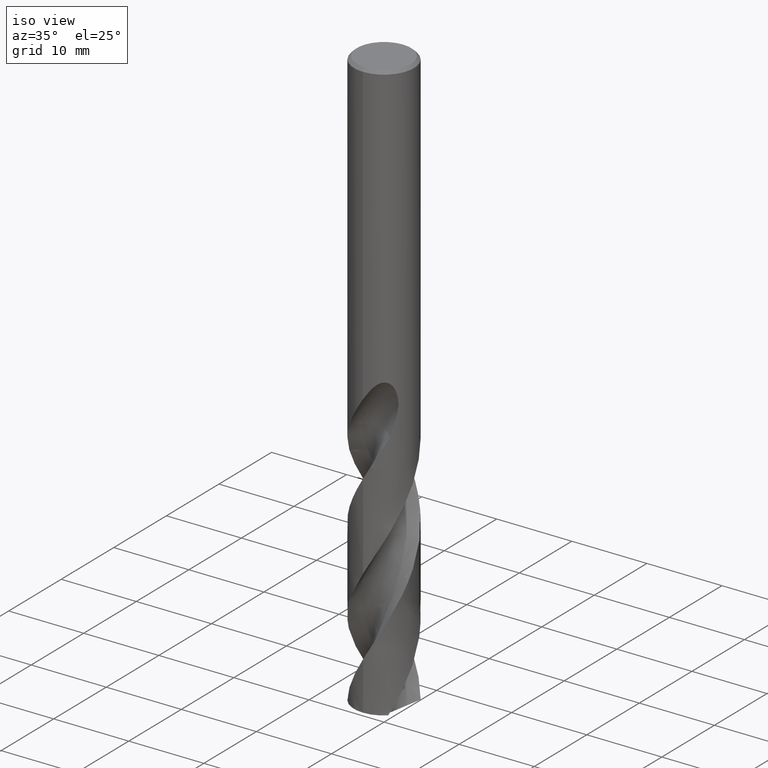
[diagram: clean part render]
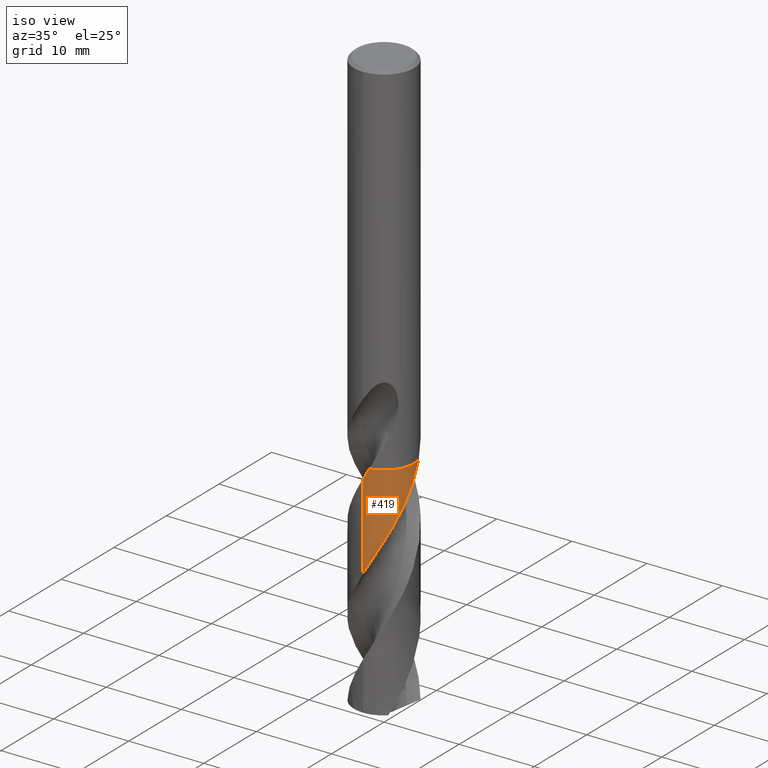
[diagram: same view with one face highlighted and labeled with its STEP entity id]
A machine part, iso view. The second image highlights one B-rep face of the part: STEP entity #419.
In plain terms, the highlighted conical surface has half-angle 0 deg.
Its self-contained STEP definition (entity closure, byte-faithful):
#295=EDGE_CURVE('',#597,#333,#789,.T.);
#333=VERTEX_POINT('',#830);
#361=EDGE_CURVE('',#333,#485,#858,.T.);
#387=VERTEX_POINT('',#888);
#419=ADVANCED_FACE('',(#921),#922,.T.);
#485=VERTEX_POINT('',#1000);
#597=VERTEX_POINT('',#1116);
#629=VERTEX_POINT('',#1150);
#639=EDGE_CURVE('',#387,#653,#1160,.T.);
#653=VERTEX_POINT('',#1177);
#657=EDGE_CURVE('',#387,#485,#1181,.T.);
#673=EDGE_CURVE('',#653,#629,#1199,.T.);
#731=EDGE_CURVE('',#629,#597,#1265,.T.);
#789=B_SPLINE_CURVE_WITH_KNOTS('',3,(#1567,#1568,#1569,#1570),.UNSPECIFIED.,.F.,.F.,(4,4),(0.0,0.0098880552336927),.UNSPECIFIED.);
#830=CARTESIAN_POINT('',(0.791054773656977,-3.92089689872888,-48.005));
#858=B_SPLINE_CURVE_WITH_KNOTS('',3,(#2239,#2240,#2241,#2242,#2243,#2244,#2245,#2246,#2247,#2248,#2249,#2250,#2251,#2252,#2253,#2254,#2255,#2256,#2257,#2258,#2259,#2260,#2261,#2262,#2263,#2264,#2265,#2266,#2267,#2268,#2269,#2270,#2271,#2272,#2273,#2274,#2275,#2276,#2277,#2278,#2279,#2280,#2281,#2282,#2283,#2284,#2285,#2286,#2287,#2288),.UNSPECIFIED.,.F.,.F.,(4,2,2,2,2,2,2,2,2,2,2,2,2,2,2,2,2,2,2,2,2,2,2,2,4),(0.0,1.02799668072742,2.07735387750067,3.63013426830625,5.1780060058088,5.94599776261361,7.48811495394432,9.03166706575465,10.5844226281698,10.6321024614875,12.0985094524009,13.6544079590011,15.1994408132323,15.9700367406661,17.5101261338691,19.0567035179434,20.608110618046,20.7990912139625,22.3324829381448,23.8079970023874,25.0952914843608,26.2243221028294,28.1968960402932,28.3820861675745,34.2062165621228),.UNSPECIFIED.);
#888=CARTESIAN_POINT('',(2.84448184570456E-014,-3.99994344808129,-60.8363528659135));
#921=FACE_OUTER_BOUND('',#3019,.T.);
#922=CONICAL_SURFACE('',#3020,3.99995,3.38476837934508E-006);
#1000=CARTESIAN_POINT('',(-1.28827969112206E-012,-3.99990468181257,-49.3832002838923));
#1116=CARTESIAN_POINT('',(0.793891596292515,-3.92032347432404,-48.0));
#1150=CARTESIAN_POINT('',(3.83959003598637,1.12104788727074,-48.0));
#1160=B_SPLINE_CURVE_WITH_KNOTS('',3,(#5688,#5689,#5690,#5691,#5692,#5693,#5694,#5695,#5696,#5697,#5698,#5699,#5700,#5701,#5702,#5703,#5704,#5705,#5706,#5707,#5708,#5709,#5710,#5711,#5712,#5713,#5714,#5715,#5716,#5717,#5718,#5719,#5720,#5721,#5722,#5723,#5724,#5725,#5726,#5727,#5728,#5729,#5730,#5731,#5732,#5733,#5734,#5735,#5736,#5737,#5738,#5739,#5740,#5741,#5742,#5743,#5744,#5745,#5746,#5747,#5748,#5749,#5750,#5751,#5752,#5753),.UNSPECIFIED.,.F.,.F.,(4,2,2,2,2,2,2,2,2,2,2,2,2,2,2,2,2,2,2,2,2,2,2,2,2,2,2,2,2,2,2,2,4),(0.0,0.944607778475356,3.20738165783474,3.64605016268316,5.04109177187664,6.93254200265713,8.19569085460567,8.77122407626578,9.97841143599279,10.6092595905983,11.2375063194132,12.8818820237863,14.1404375944332,15.6474018743326,16.4210269280412,17.6649261052635,18.27322196898,18.862197856048,20.0619138474756,20.6932373448301,21.3221075603283,23.4500408515092,23.7348240611657,24.9376039422612,26.0941447335014,26.1785505962015,27.558081359634,28.2368339104305,28.9759774203419,30.2742329755983,32.2196413438394,32.7068085286034,34.1649802506815),.UNSPECIFIED.);
#1177=CARTESIAN_POINT('',(3.84039807944585,1.11827669217084,-48.005));
#1181=LINE('',#5852,#5853);
#1199=B_SPLINE_CURVE_WITH_KNOTS('',3,(#6446,#6447,#6448,#6449),.UNSPECIFIED.,.F.,.F.,(4,4),(0.0,0.0119470325940762),.UNSPECIFIED.);
#1265=CIRCLE('',#7650,3.9999);
#1567=CARTESIAN_POINT('',(0.793891596292534,-3.92032347432403,-48.0));
#1568=CARTESIAN_POINT('',(0.792273242918883,-3.92065121150491,-48.0028525879593));
#1569=CARTESIAN_POINT('',(0.790654705592454,-3.92097794272793,-48.0057051862417));
#1570=CARTESIAN_POINT('',(0.789035985242139,-3.92130366787838,-48.0085577964626));
#2239=CARTESIAN_POINT('',(0.791838784257172,-3.92073863547652,-48.0036182177148));
#2240=CARTESIAN_POINT('',(0.623572954509755,-3.95472290159962,-48.3001841739063));
#2241=CARTESIAN_POINT('',(0.453473797606114,-3.97780335772909,-48.5970459985183));
#2242=CARTESIAN_POINT('',(0.108190376496586,-4.00226200502771,-49.1965065546721));
#2243=CARTESIAN_POINT('',(-0.0669438566466696,-4.00317526336891,-49.49861443986));
#2244=CARTESIAN_POINT('',(-0.50030479960108,-3.97694296299062,-50.2490689062949));
#2245=CARTESIAN_POINT('',(-0.756639476620323,-3.93621046461631,-50.6957967943652));
#2246=CARTESIAN_POINT('',(-1.25679439935651,-3.80609056041076,-51.5903377106872));
#2247=CARTESIAN_POINT('',(-1.49972547534538,-3.7170982342063,-52.0358548996867));
#2248=CARTESIAN_POINT('',(-1.84796869035884,-3.54975430337122,-52.703772375038));
#2249=CARTESIAN_POINT('',(-1.96068160379334,-3.48876177918256,-52.9250443357911));
#2250=CARTESIAN_POINT('',(-2.29026091701263,-3.28940301336364,-53.5914805853687));
#2251=CARTESIAN_POINT('',(-2.49699202907519,-3.13537564420076,-54.0356106508866));
#2252=CARTESIAN_POINT('',(-2.87825773849605,-2.7895034223265,-54.9256725983561));
#2253=CARTESIAN_POINT('',(-3.05177046120883,-2.59852350011646,-55.369876870617));
#2254=CARTESIAN_POINT('',(-3.36051953826379,-2.18480023641827,-56.2632035041614));
#2255=CARTESIAN_POINT('',(-3.49489687870964,-1.96271308775711,-56.7099054988991));
#2256=CARTESIAN_POINT('',(-3.61032397437657,-1.72193856786252,-57.1715313406014));
#2257=CARTESIAN_POINT('',(-3.61374109708892,-1.71475574648098,-57.1852839113042));
#2258=CARTESIAN_POINT('',(-3.72156524213154,-1.48635498170918,-57.6220044689431));
#2259=CARTESIAN_POINT('',(-3.80547095969,-1.25605749944277,-58.0446831669718));
#2260=CARTESIAN_POINT('',(-3.93396057456556,-0.768629516382036,-58.9165873307411));
#2261=CARTESIAN_POINT('',(-3.975520561322,-0.511902746727313,-59.3638327900287));
#2262=CARTESIAN_POINT('',(-4.00822640244749,0.00409666810817405,-60.2585324706806));
#2263=CARTESIAN_POINT('',(-3.99965252303572,0.26226014437244,-60.7034112893081));
#2264=CARTESIAN_POINT('',(-3.94963082882328,0.645375907918353,-61.3713903033814));
#2265=CARTESIAN_POINT('',(-3.9268524519764,0.771954533298283,-61.5934223651593));
#2266=CARTESIAN_POINT('',(-3.84041809970519,1.14749468546471,-62.2601318746146));
#2267=CARTESIAN_POINT('',(-3.75881785037602,1.39173129389942,-62.7038361828208));
#2268=CARTESIAN_POINT('',(-3.5494047052924,1.86223937229388,-63.594365060592));
#2269=CARTESIAN_POINT('',(-3.42193867176568,2.08721888848722,-64.0393989651504));
#2270=CARTESIAN_POINT('',(-3.12510909337307,2.51003593374624,-64.933372411578));
#2271=CARTESIAN_POINT('',(-2.95621914574408,2.70692877582486,-65.3798228775582));
#2272=CARTESIAN_POINT('',(-2.74642169522876,2.90824135609275,-65.8824827735131));
#2273=CARTESIAN_POINT('',(-2.72316706876322,2.93002767645707,-65.937567945988));
#2274=CARTESIAN_POINT('',(-2.51087207447297,3.12420803253776,-66.4351149288434));
#2275=CARTESIAN_POINT('',(-2.30594161670195,3.27838424851526,-66.8771622863122));
#2276=CARTESIAN_POINT('',(-1.87770785831832,3.54041784492399,-67.7454389618058));
#2277=CARTESIAN_POINT('',(-1.6563424304655,3.64922423706427,-68.1698792639462));
#2278=CARTESIAN_POINT('',(-1.22584574239272,3.81355035678172,-68.9672700350543));
#2279=CARTESIAN_POINT('',(-1.01935864631966,3.87386616189126,-69.3383075573583));
#2280=CARTESIAN_POINT('',(-0.624438101721958,3.95542364169466,-70.035567711206));
#2281=CARTESIAN_POINT('',(-0.437506448952736,3.98043442194274,-70.36069639626));
#2282=CARTESIAN_POINT('',(0.0788280941115898,4.01271371994461,-71.2559125742705));
#2283=CARTESIAN_POINT('',(0.408617993278139,3.99265391261368,-71.8231966866826));
#2284=CARTESIAN_POINT('',(0.762697250022255,3.92671750452749,-72.4458548487027));
#2285=CARTESIAN_POINT('',(0.793014935318136,3.92070732171032,-72.4992861605571));
#2286=CARTESIAN_POINT('',(1.77443541089015,3.71430243070943,-74.233625532473));
#2287=CARTESIAN_POINT('',(2.62116420497109,3.17414673554688,-75.8635256924284));
#2288=CARTESIAN_POINT('',(3.20352415008977,2.39529393181539,-77.5441190629352));
#3019=EDGE_LOOP('',(#7804,#7805,#7806,#7807,#7808,#7809));
#3020=AXIS2_PLACEMENT_3D('',#7810,#7811,#7812);
#5688=CARTESIAN_POINT('',(-2.65823386777546,2.98894508216719,-77.5441190629352));
#5689=CARTESIAN_POINT('',(-2.77556102004278,2.88459833227332,-77.2711927987166));
#5690=CARTESIAN_POINT('',(-2.88681406985195,2.77327742048023,-76.9987989685458));
#5691=CARTESIAN_POINT('',(-3.24164789803794,2.37357552207099,-76.0736120869221));
#5692=CARTESIAN_POINT('',(-3.4505710956924,2.05794395308095,-75.4305468600623));
#5693=CARTESIAN_POINT('',(-3.64355241925945,1.65220166964546,-74.6512273300444));
#5694=CARTESIAN_POINT('',(-3.67305599722304,1.58553265109094,-74.5244965426156));
#5695=CARTESIAN_POINT('',(-3.78893127324489,1.30302280883274,-73.9950222844806));
#5696=CARTESIAN_POINT('',(-3.85830732274212,1.08056131961382,-73.5945146091246));
#5697=CARTESIAN_POINT('',(-3.97532202569496,0.544443886402237,-72.6466260050161));
#5698=CARTESIAN_POINT('',(-4.00589380940155,0.229055120920539,-72.0998870108345));
#5699=CARTESIAN_POINT('',(-3.99445998929611,-0.297701256568961,-71.1901162837228));
#5700=CARTESIAN_POINT('',(-3.97320754130469,-0.507651590663848,-70.827383051967));
#5701=CARTESIAN_POINT('',(-3.91848448894159,-0.808995454242318,-70.2966637399611));
#5702=CARTESIAN_POINT('',(-3.89798790066479,-0.902606190769606,-70.1302364692914));
#5703=CARTESIAN_POINT('',(-3.82400720922861,-1.19049017225751,-69.6154103783241));
#5704=CARTESIAN_POINT('',(-3.75921750698913,-1.3815757204878,-69.2682984051038));
#5705=CARTESIAN_POINT('',(-3.63888079688569,-1.66415758985889,-68.737968073767));
#5706=CARTESIAN_POINT('',(-3.59380235664205,-1.75937749340445,-68.5561069912387));
#5707=CARTESIAN_POINT('',(-3.49654990335741,-1.94547227666927,-68.1925755153557));
#5708=CARTESIAN_POINT('',(-3.44446066174963,-2.03626803339345,-68.0108051160836));
#5709=CARTESIAN_POINT('',(-3.24332176023232,-2.357040077232,-67.3548451543753));
#5710=CARTESIAN_POINT('',(-3.07425089433409,-2.57370258624095,-66.8839181390173));
#5711=CARTESIAN_POINT('',(-2.73870093948168,-2.92289033475229,-66.0466681726582));
#5712=CARTESIAN_POINT('',(-2.58165765394608,-3.06248133757378,-65.6824271720416));
#5713=CARTESIAN_POINT('',(-2.21386817554515,-3.34090221198919,-64.8848080611967));
#5714=CARTESIAN_POINT('',(-1.99968450615289,-3.47332204106082,-64.4529194049291));
#5715=CARTESIAN_POINT('',(-1.65910447933702,-3.64192515353733,-63.795053248269));
#5716=CARTESIAN_POINT('',(-1.5409878606093,-3.69345348227735,-63.5713275840059));
#5717=CARTESIAN_POINT('',(-1.22669092355789,-3.81284726340129,-62.9893082582716));
#5718=CARTESIAN_POINT('',(-1.02733895056704,-3.87134082278187,-62.6320960741547));
#5719=CARTESIAN_POINT('',(-0.72481123957225,-3.93503998026209,-62.0981409625543));
#5720=CARTESIAN_POINT('',(-0.624810885864083,-3.95214492080197,-61.9229087364971));
#5721=CARTESIAN_POINT('',(-0.427154510423193,-3.97828183232971,-61.5774857231948));
#5722=CARTESIAN_POINT('',(-0.3295723008521,-3.98755230175425,-61.407239331298));
#5723=CARTESIAN_POINT('',(-0.0320758804720944,-4.00480578345406,-60.8910525540997));
#5724=CARTESIAN_POINT('',(0.168262032612812,-4.00141974872953,-60.5463147184616));
#5725=CARTESIAN_POINT('',(0.472717143366436,-3.97330809449566,-60.0183889329416));
#5726=CARTESIAN_POINT('',(0.577164951234486,-3.95947869741732,-59.8365259758794));
#5727=CARTESIAN_POINT('',(0.784123176988614,-3.92372859205229,-59.4729521764316));
#5728=CARTESIAN_POINT('',(0.886521641608741,-3.90186335604649,-59.2911349776263));
#5729=CARTESIAN_POINT('',(1.33108473734357,-3.78854862838769,-58.496157134385));
#5730=CARTESIAN_POINT('',(1.66089183676616,-3.65596542967732,-57.8903587398293));
#5731=CARTESIAN_POINT('',(2.01008210958356,-3.4585055883091,-57.1947405951431));
#5732=CARTESIAN_POINT('',(2.05083180704779,-3.43449813077703,-57.1125958426614));
#5733=CARTESIAN_POINT('',(2.26165714740143,-3.30519746147586,-56.6836950369005));
#5734=CARTESIAN_POINT('',(2.42430639304142,-3.18785438629262,-56.3383933363396));
#5735=CARTESIAN_POINT('',(2.72522818028146,-2.93423835608334,-55.658999318917));
#5736=CARTESIAN_POINT('',(2.86324796146364,-2.79966401724105,-55.3270717498978));
#5737=CARTESIAN_POINT('',(3.00012624016311,-2.64552978637305,-54.9692297442196));
#5738=CARTESIAN_POINT('',(3.009384247403,-2.6349938099137,-54.9448777563002));
#5739=CARTESIAN_POINT('',(3.1694533980648,-2.450876826071,-54.5214979272478));
#5740=CARTESIAN_POINT('',(3.30531029369758,-2.26440464951217,-54.1247482898543));
#5741=CARTESIAN_POINT('',(3.48319682324182,-1.96966436499978,-53.5303421434069));
#5742=CARTESIAN_POINT('',(3.53763978654264,-1.87010428581762,-53.3345385681658));
#5743=CARTESIAN_POINT('',(3.64229710709374,-1.65777942699058,-52.924818112569));
#5744=CARTESIAN_POINT('',(3.69163846374925,-1.54477471387973,-52.7106886460385));
#5745=CARTESIAN_POINT('',(3.81308398527364,-1.22742915387796,-52.122124513118));
#5746=CARTESIAN_POINT('',(3.87401093177715,-1.01904110755855,-51.7489745623569));
#5747=CARTESIAN_POINT('',(3.98333765897207,-0.487920392043258,-50.8128663857994));
#5748=CARTESIAN_POINT('',(4.00979785319099,-0.162722014029165,-50.2502476935741));
#5749=CARTESIAN_POINT('',(3.9933186481827,0.243467217857521,-49.5481514092733));
#5750=CARTESIAN_POINT('',(3.98753614821066,0.324685016692665,-49.4076954250737));
#5751=CARTESIAN_POINT('',(3.9545663370068,0.648072104247603,-48.8462930690723));
#5752=CARTESIAN_POINT('',(3.90794614119445,0.886332407991343,-48.4234719112503));
#5753=CARTESIAN_POINT('',(3.8403657871152,1.11838757196487,-48.0047999463357));
#5852=CARTESIAN_POINT('',(4.90308065485379E-016,-3.99995,-62.7720595314676));
#5853=VECTOR('',#8073,1.0);
#6446=CARTESIAN_POINT('',(3.84125983969179,1.11531302069599,-48.010346721785));
#6447=CARTESIAN_POINT('',(3.84070471376244,1.11722489315119,-48.0068977155181));
#6448=CARTESIAN_POINT('',(3.84014811264589,1.1191365158539,-48.0034488078358));
#6449=CARTESIAN_POINT('',(3.83959003598639,1.12104788727073,-48.0));
#7650=AXIS2_PLACEMENT_3D('',#8175,#8176,#8177);
#7804=ORIENTED_EDGE('',*,*,#657,.F.);
#7805=ORIENTED_EDGE('',*,*,#639,.T.);
#7806=ORIENTED_EDGE('',*,*,#673,.T.);
#7807=ORIENTED_EDGE('',*,*,#731,.T.);
#7808=ORIENTED_EDGE('',*,*,#295,.T.);
#7809=ORIENTED_EDGE('',*,*,#361,.T.);
#7810=CARTESIAN_POINT('',(0.0,0.0,-62.7720595314676));
#7811=DIRECTION('',(0.0,-0.0,-1.0));
#7812=DIRECTION('',(0.0,1.0,0.0));
#8073=DIRECTION('',(-4.14500886355514E-022,3.38476837933861E-006,0.999999999994272));
#8175=CARTESIAN_POINT('',(0.0,0.0,-48.0));
#8176=DIRECTION('',(0.0,0.0,-1.0));
#8177=DIRECTION('',(0.0,1.0,0.0));